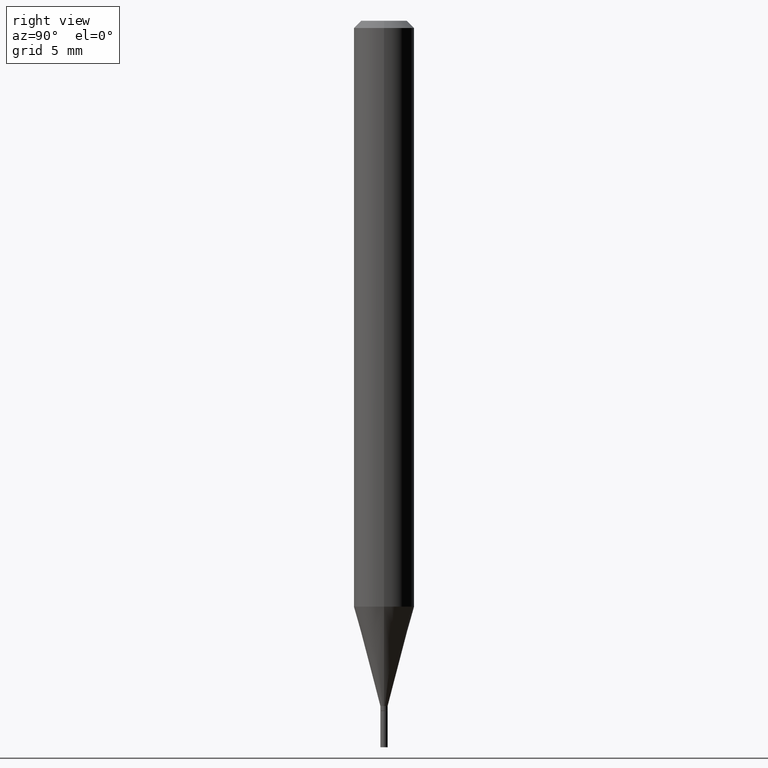
[diagram: clean part render]
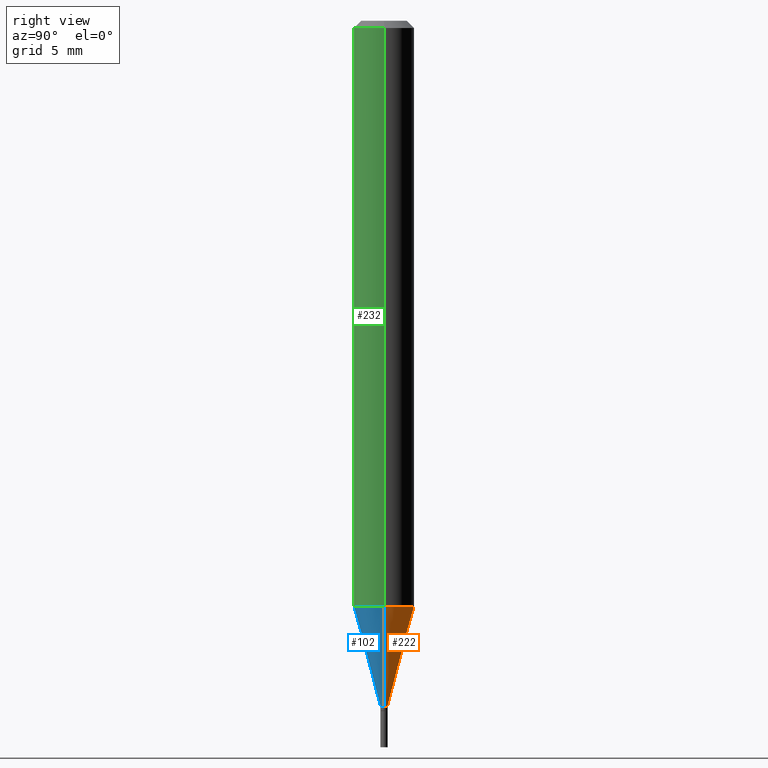
[diagram: same view with three faces highlighted in distinct colors, each labeled with its STEP entity id]
A machine part, right view with three faces highlighted in distinct colors.
Their STEP definitions:

[orange] entity #222 — the highlighted conical surface has half-angle 15 deg.
#6 = DIRECTION ( 'NONE',  ( -2.445468806185136597E-29, 3.491481338843145583E-15, 1.000000000000000000 ) ) ;
#7 = VERTEX_POINT ( 'NONE', #384 ) ;
#11 = CARTESIAN_POINT ( 'NONE',  ( 2.958374599936542913E-29, -4.223774878199784221E-15, -1.209737205583711894 ) ) ;
#19 = AXIS2_PLACEMENT_3D ( 'NONE', #11, #284, #465 ) ;
#20 = ORIENTED_EDGE ( 'NONE', *, *, #89, .F. ) ;
#45 = CONICAL_SURFACE ( 'NONE', #258, 0.007499999999999919925, 0.2617993877991498519 ) ;
#46 = CARTESIAN_POINT ( 'NONE',  ( -0.06250000000000001388, -3.779685668349720027E-15, -1.209737205583711894 ) ) ;
#50 = ORIENTED_EDGE ( 'NONE', *, *, #139, .T. ) ;
#73 = VECTOR ( 'NONE', #403, 39.37007874015748854 ) ;
#87 = CARTESIAN_POINT ( 'NONE',  ( 0.007499999999999919925, -4.992818314545696633E-15, -1.415000000000000036 ) ) ;
#89 = EDGE_CURVE ( 'NONE', #7, #220, #371, .T. ) ;
#95 = VERTEX_POINT ( 'NONE', #252 ) ;
#96 = DIRECTION ( 'NONE',  ( 1.000000000000000000, -6.982962677686213068E-15, 0.000000000000000000 ) ) ;
#98 = CIRCLE ( 'NONE', #288, 0.007499999999999919925 ) ;
#112 = ORIENTED_EDGE ( 'NONE', *, *, #327, .F. ) ;
#127 = DIRECTION ( 'NONE',  ( 1.000000000000000000, -6.982962677686213068E-15, 0.000000000000000000 ) ) ;
#139 = EDGE_CURVE ( 'NONE', #154, #220, #224, .T. ) ;
#145 = EDGE_LOOP ( 'NONE', ( #202, #50, #20, #112 ) ) ;
#149 = CARTESIAN_POINT ( 'NONE',  ( -0.007499999999999919925, -4.887155389281043570E-15, -1.415000000000000036 ) ) ;
#154 = VERTEX_POINT ( 'NONE', #392 ) ;
#155 = VECTOR ( 'NONE', #289, 39.37007874015748854 ) ;
#186 = FACE_OUTER_BOUND ( 'NONE', #145, .T. ) ;
#202 = ORIENTED_EDGE ( 'NONE', *, *, #376, .T. ) ;
#220 = VERTEX_POINT ( 'NONE', #46 ) ;
#222 = ADVANCED_FACE ( 'NONE', ( #186 ), #45, .T. ) ;
#224 = LINE ( 'NONE', #149, #155 ) ;
#252 = CARTESIAN_POINT ( 'NONE',  ( 0.007499999999999919925, -4.992818314545696633E-15, -1.415000000000000036 ) ) ;
#258 = AXIS2_PLACEMENT_3D ( 'NONE', #314, #6, #96 ) ;
#284 = DIRECTION ( 'NONE',  ( -2.445468806185136597E-29, 3.491481338843145583E-15, 1.000000000000000000 ) ) ;
#288 = AXIS2_PLACEMENT_3D ( 'NONE', #332, #362, #127 ) ;
#289 = DIRECTION ( 'NONE',  ( -0.2588190451025211281, 5.211531920934547886E-15, 0.9659258262890679791 ) ) ;
#294 = LINE ( 'NONE', #87, #73 ) ;
#314 = CARTESIAN_POINT ( 'NONE',  ( 3.460338360751968441E-29, -4.940446094463050737E-15, -1.415000000000000036 ) ) ;
#327 = EDGE_CURVE ( 'NONE', #95, #7, #294, .T. ) ;
#332 = CARTESIAN_POINT ( 'NONE',  ( 3.460338360751968441E-29, -4.940446094463050737E-15, -1.415000000000000036 ) ) ;
#362 = DIRECTION ( 'NONE',  ( -2.445468806185136597E-29, 3.491481338843145583E-15, 1.000000000000000000 ) ) ;
#371 = CIRCLE ( 'NONE', #19, 0.06250000000000000000 ) ;
#376 = EDGE_CURVE ( 'NONE', #95, #154, #98, .T. ) ;
#384 = CARTESIAN_POINT ( 'NONE',  ( 0.06250000000000001388, -4.660210045555175101E-15, -1.209737205583711894 ) ) ;
#392 = CARTESIAN_POINT ( 'NONE',  ( -0.007499999999999919925, -4.333420528815381799E-15, -1.415000000000000036 ) ) ;
#403 = DIRECTION ( 'NONE',  ( 0.2588190451025211281, 1.565188264969622954E-15, 0.9659258262890679791 ) ) ;
#465 = DIRECTION ( 'NONE',  ( 1.000000000000000000, -6.982962677686270655E-15, 0.000000000000000000 ) ) ;

[blue] entity #102 — the highlighted conical surface has half-angle 15 deg.
#7 = VERTEX_POINT ( 'NONE', #384 ) ;
#12 = AXIS2_PLACEMENT_3D ( 'NONE', #63, #201, #18 ) ;
#15 = ORIENTED_EDGE ( 'NONE', *, *, #327, .T. ) ;
#18 = DIRECTION ( 'NONE',  ( 1.000000000000000000, -6.982962677686270655E-15, 0.000000000000000000 ) ) ;
#43 = ORIENTED_EDGE ( 'NONE', *, *, #323, .F. ) ;
#46 = CARTESIAN_POINT ( 'NONE',  ( -0.06250000000000001388, -3.779685668349720027E-15, -1.209737205583711894 ) ) ;
#55 = ORIENTED_EDGE ( 'NONE', *, *, #368, .T. ) ;
#60 = DIRECTION ( 'NONE',  ( 1.000000000000000000, -6.982962677686213068E-15, 0.000000000000000000 ) ) ;
#63 = CARTESIAN_POINT ( 'NONE',  ( 2.958374599936542913E-29, -4.223774878199784221E-15, -1.209737205583711894 ) ) ;
#72 = AXIS2_PLACEMENT_3D ( 'NONE', #217, #123, #398 ) ;
#73 = VECTOR ( 'NONE', #403, 39.37007874015748854 ) ;
#87 = CARTESIAN_POINT ( 'NONE',  ( 0.007499999999999919925, -4.992818314545696633E-15, -1.415000000000000036 ) ) ;
#93 = CARTESIAN_POINT ( 'NONE',  ( 3.460338360751968441E-29, -4.940446094463050737E-15, -1.415000000000000036 ) ) ;
#95 = VERTEX_POINT ( 'NONE', #252 ) ;
#102 = ADVANCED_FACE ( 'NONE', ( #114 ), #256, .T. ) ;
#106 = CIRCLE ( 'NONE', #179, 0.007499999999999919925 ) ;
#114 = FACE_OUTER_BOUND ( 'NONE', #378, .T. ) ;
#123 = DIRECTION ( 'NONE',  ( -2.445468806185136597E-29, 3.491481338843145583E-15, 1.000000000000000000 ) ) ;
#139 = EDGE_CURVE ( 'NONE', #154, #220, #224, .T. ) ;
#149 = CARTESIAN_POINT ( 'NONE',  ( -0.007499999999999919925, -4.887155389281043570E-15, -1.415000000000000036 ) ) ;
#154 = VERTEX_POINT ( 'NONE', #392 ) ;
#155 = VECTOR ( 'NONE', #289, 39.37007874015748854 ) ;
#179 = AXIS2_PLACEMENT_3D ( 'NONE', #93, #234, #60 ) ;
#201 = DIRECTION ( 'NONE',  ( -2.445468806185136597E-29, 3.491481338843145583E-15, 1.000000000000000000 ) ) ;
#217 = CARTESIAN_POINT ( 'NONE',  ( 3.460338360751968441E-29, -4.940446094463050737E-15, -1.415000000000000036 ) ) ;
#220 = VERTEX_POINT ( 'NONE', #46 ) ;
#224 = LINE ( 'NONE', #149, #155 ) ;
#234 = DIRECTION ( 'NONE',  ( -2.445468806185136597E-29, 3.491481338843145583E-15, 1.000000000000000000 ) ) ;
#252 = CARTESIAN_POINT ( 'NONE',  ( 0.007499999999999919925, -4.992818314545696633E-15, -1.415000000000000036 ) ) ;
#256 = CONICAL_SURFACE ( 'NONE', #72, 0.007499999999999919925, 0.2617993877991498519 ) ;
#289 = DIRECTION ( 'NONE',  ( -0.2588190451025211281, 5.211531920934547886E-15, 0.9659258262890679791 ) ) ;
#294 = LINE ( 'NONE', #87, #73 ) ;
#304 = ORIENTED_EDGE ( 'NONE', *, *, #139, .F. ) ;
#323 = EDGE_CURVE ( 'NONE', #220, #7, #425, .T. ) ;
#327 = EDGE_CURVE ( 'NONE', #95, #7, #294, .T. ) ;
#368 = EDGE_CURVE ( 'NONE', #154, #95, #106, .T. ) ;
#378 = EDGE_LOOP ( 'NONE', ( #304, #55, #15, #43 ) ) ;
#384 = CARTESIAN_POINT ( 'NONE',  ( 0.06250000000000001388, -4.660210045555175101E-15, -1.209737205583711894 ) ) ;
#392 = CARTESIAN_POINT ( 'NONE',  ( -0.007499999999999919925, -4.333420528815381799E-15, -1.415000000000000036 ) ) ;
#398 = DIRECTION ( 'NONE',  ( 1.000000000000000000, -6.982962677686213068E-15, 0.000000000000000000 ) ) ;
#403 = DIRECTION ( 'NONE',  ( 0.2588190451025211281, 1.565188264969622954E-15, 0.9659258262890679791 ) ) ;
#425 = CIRCLE ( 'NONE', #12, 0.06250000000000000000 ) ;

[green] entity #232 — the highlighted cylindrical surface (edge-blend (fillet) strip) has radius 1.5875 mm, axis along (-0, 0, 1).
#7 = VERTEX_POINT ( 'NONE', #384 ) ;
#12 = AXIS2_PLACEMENT_3D ( 'NONE', #63, #201, #18 ) ;
#14 = LINE ( 'NONE', #442, #451 ) ;
#18 = DIRECTION ( 'NONE',  ( 1.000000000000000000, -6.982962677686270655E-15, 0.000000000000000000 ) ) ;
#22 = DIRECTION ( 'NONE',  ( -2.445468806185136597E-29, 3.491481338843145583E-15, 1.000000000000000000 ) ) ;
#42 = CARTESIAN_POINT ( 'NONE',  ( -0.06250000000000000000, -1.693984339291153034E-15, -0.01499999999999999944 ) ) ;
#46 = CARTESIAN_POINT ( 'NONE',  ( -0.06250000000000001388, -3.779685668349720027E-15, -1.209737205583711894 ) ) ;
#54 = VECTOR ( 'NONE', #64, 39.37007874015748143 ) ;
#62 = CIRCLE ( 'NONE', #363, 0.06250000000000000000 ) ;
#63 = CARTESIAN_POINT ( 'NONE',  ( 2.958374599936542913E-29, -4.223774878199784221E-15, -1.209737205583711894 ) ) ;
#64 = DIRECTION ( 'NONE',  ( -2.445468806185136877E-29, 3.491481338843145188E-15, 1.000000000000000000 ) ) ;
#116 = ORIENTED_EDGE ( 'NONE', *, *, #323, .T. ) ;
#129 = FACE_OUTER_BOUND ( 'NONE', #343, .T. ) ;
#162 = VERTEX_POINT ( 'NONE', #286 ) ;
#164 = CYLINDRICAL_SURFACE ( 'NONE', #410, 0.06250000000000000000 ) ;
#171 = VERTEX_POINT ( 'NONE', #42 ) ;
#201 = DIRECTION ( 'NONE',  ( -2.445468806185136597E-29, 3.491481338843145583E-15, 1.000000000000000000 ) ) ;
#207 = CARTESIAN_POINT ( 'NONE',  ( 0.06250000000000000000, -4.364351673553916694E-16, 3.047610484872459871E-30 ) ) ;
#220 = VERTEX_POINT ( 'NONE', #46 ) ;
#223 = ORIENTED_EDGE ( 'NONE', *, *, #265, .F. ) ;
#231 = CARTESIAN_POINT ( 'NONE',  ( 0.000000000000000000, 0.000000000000000000, 0.000000000000000000 ) ) ;
#232 = ADVANCED_FACE ( 'NONE', ( #129 ), #164, .T. ) ;
#238 = DIRECTION ( 'NONE',  ( 1.000000000000000000, -6.982962677686266711E-15, 0.000000000000000000 ) ) ;
#265 = EDGE_CURVE ( 'NONE', #220, #171, #14, .T. ) ;
#269 = DIRECTION ( 'NONE',  ( -2.445468806185136877E-29, 3.491481338843145188E-15, 1.000000000000000000 ) ) ;
#286 = CARTESIAN_POINT ( 'NONE',  ( 0.06250000000000000000, -4.888073874380388472E-16, -0.01499999999999999944 ) ) ;
#297 = DIRECTION ( 'NONE',  ( 1.000000000000000000, -6.982962677686266711E-15, 4.876176775795935793E-29 ) ) ;
#323 = EDGE_CURVE ( 'NONE', #220, #7, #425, .T. ) ;
#333 = DIRECTION ( 'NONE',  ( -2.445468806185136597E-29, 3.491481338843145583E-15, 1.000000000000000000 ) ) ;
#337 = CARTESIAN_POINT ( 'NONE',  ( 3.668203209277705088E-31, -5.237222008264718399E-17, -0.01499999999999999944 ) ) ;
#343 = EDGE_LOOP ( 'NONE', ( #223, #116, #361, #357 ) ) ;
#357 = ORIENTED_EDGE ( 'NONE', *, *, #463, .F. ) ;
#361 = ORIENTED_EDGE ( 'NONE', *, *, #412, .T. ) ;
#363 = AXIS2_PLACEMENT_3D ( 'NONE', #337, #333, #238 ) ;
#377 = LINE ( 'NONE', #207, #54 ) ;
#384 = CARTESIAN_POINT ( 'NONE',  ( 0.06250000000000001388, -4.660210045555175101E-15, -1.209737205583711894 ) ) ;
#410 = AXIS2_PLACEMENT_3D ( 'NONE', #231, #22, #297 ) ;
#412 = EDGE_CURVE ( 'NONE', #7, #162, #377, .T. ) ;
#425 = CIRCLE ( 'NONE', #12, 0.06250000000000000000 ) ;
#442 = CARTESIAN_POINT ( 'NONE',  ( -0.06250000000000000000, 4.440892098500626162E-16, -3.074334431409316114E-30 ) ) ;
#451 = VECTOR ( 'NONE', #269, 39.37007874015748143 ) ;
#463 = EDGE_CURVE ( 'NONE', #171, #162, #62, .T. ) ;